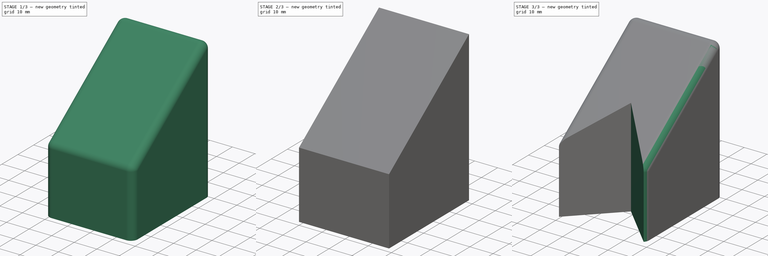
[diagram: build sequence overview — one tinted view per stage of 3, left to right]
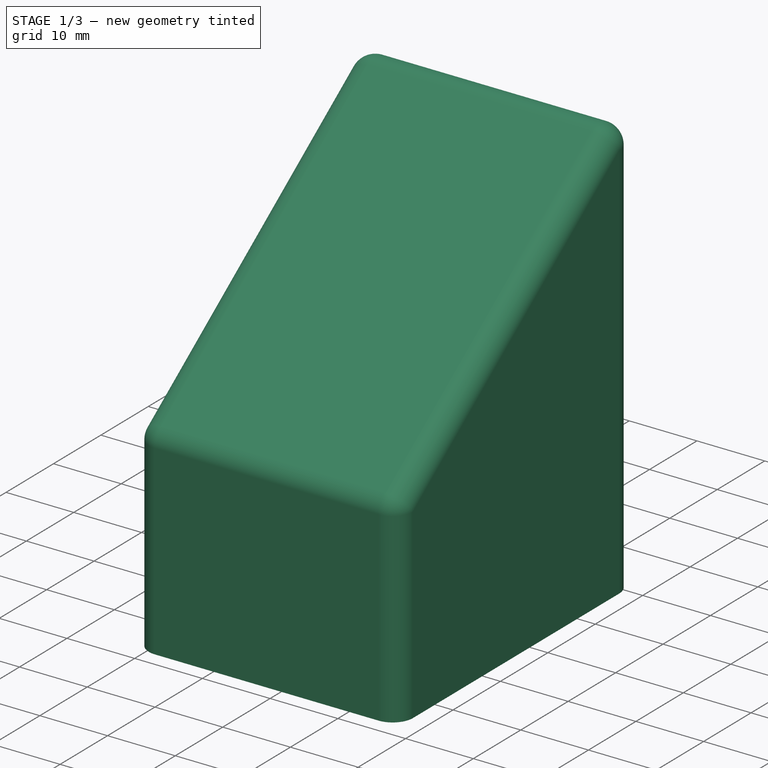
[diagram: stage 1 of 3 — iso view after this stage's code; geometry added in this stage tinted green]
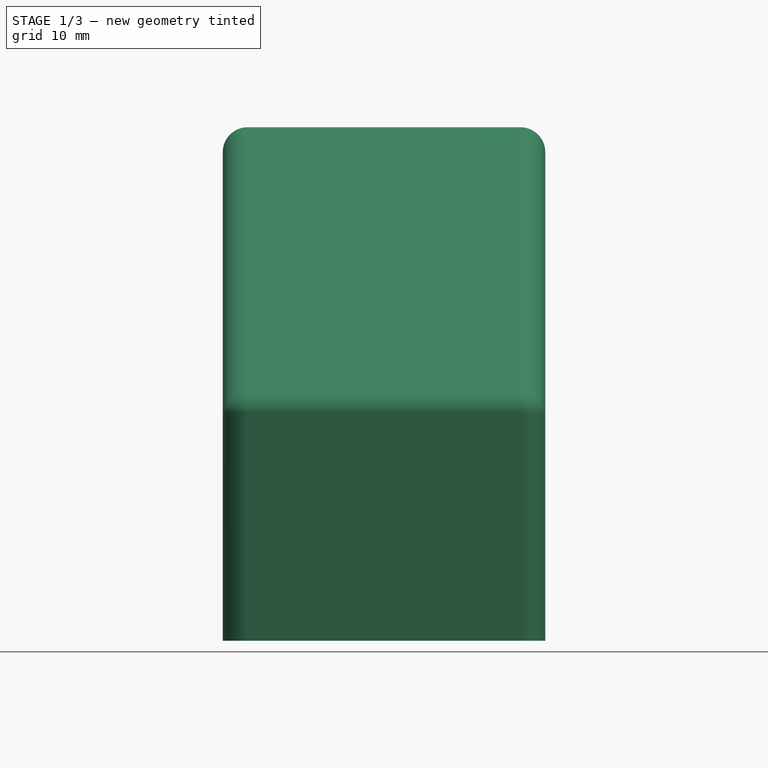
[diagram: stage 1 of 3 — front view after this stage's code; geometry added in this stage tinted green]
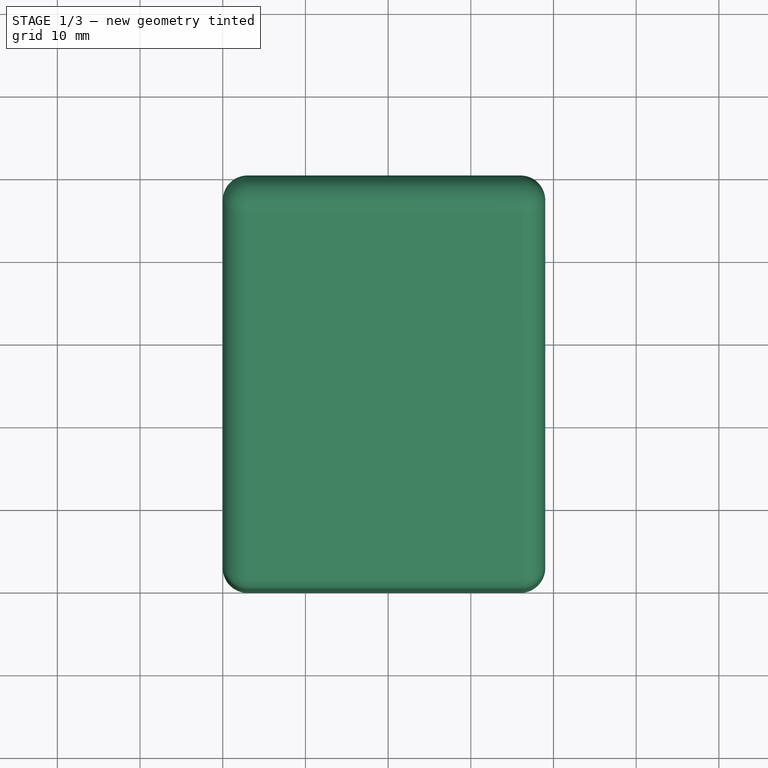
[diagram: stage 1 of 3 — top view after this stage's code; geometry added in this stage tinted green]
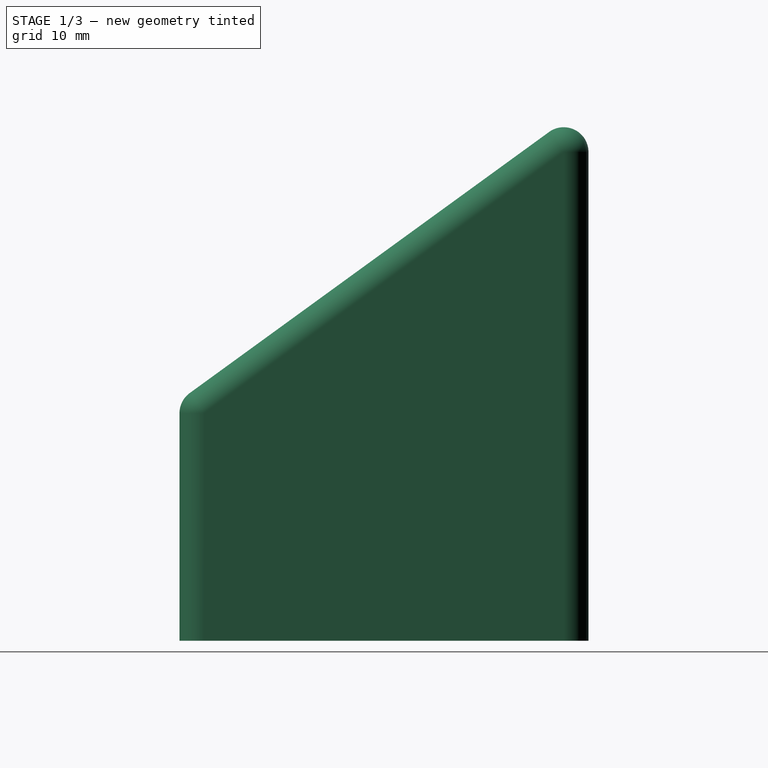
[diagram: stage 1 of 3 — right view after this stage's code; geometry added in this stage tinted green]
FCSTD DOCUMENT  (FreeCAD 1.0R39319 (Git))
Label: Ограничитель для окна
License: All rights reserved
LicenseURL: https://en.wikipedia.org/wiki/All_rights_reserved
objects: Sketcher::SketchObject×4, PartDesign::Pad×2, PartDesign::Fillet×2, PartDesign::Pocket×2, PartDesign::Body×2
note: 28 computed .brp shape members not serialized (recipe doc carries the construction recipe); baked Part::Feature solids carry a one-line shape summary decoded from their .brp

FEATURE [PartDesign::Body] Body002  label="Ограничитель (правый)"
  AllowCompound = false
  Group = -> [Sketch003,Pad002,Fillet,Sketch004,Pocket001]
  Origin = -> Origin004
  Placement = pos=(-50,0,0) rot=(0,0,1;0rad)
  Tip = -> Pocket001
FEATURE [Sketcher::SketchObject] Sketch005
  ArcFitTolerance = 1e-06
  FullyConstrained = true
  MakeInternals = false
  MapMode = 5
  Placement = pos=(0,0,0) rot=(0.57735,0.57735,0.57735;2.0944rad)
  sketch-geometry (7):
    g0: LineSegment [constr] StartX=0 StartY=0 StartZ=0 EndX=89.4648 EndY=65 EndZ=0
    g1: LineSegment [constr] StartX=89.4648 StartY=65 StartZ=0 EndX=89.4648 EndY=0 EndZ=0
    g2: LineSegment [constr] StartX=89.4648 StartY=0 StartZ=0 EndX=0 EndY=0 EndZ=0
    g3: LineSegment StartX=40 StartY=0 StartZ=0 EndX=40 EndY=29.0617 EndZ=0
    g4: LineSegment StartX=40 StartY=29.0617 StartZ=0 EndX=89.4648 EndY=65 EndZ=0
    g5: LineSegment StartX=89.4648 StartY=65 StartZ=0 EndX=89.4648 EndY=0 EndZ=0
    g6: LineSegment StartX=89.4648 StartY=0 StartZ=0 EndX=40 EndY=0 EndZ=0
  constraints (18):
    c: Coincident(g0,g1)
    c: Coincident(g1,g2)
    c: Coincident(g2,g0)
    c: Angle(g0,g1) = 0.942478
    c: Horizontal(g2)
    c: PointOnObject(g3,g2)
    c: PointOnObject(g3,g0)
    c: Vertical(g3)
    c: Coincident(g3,g4)
    c: Coincident(g4,g0)
    c: Coincident(g4,g5)
    c: Coincident(g5,g1)
    c: Coincident(g5,g6)
    c: Coincident(g6,g3)
    c: Vertical(g5)
    c: DistanceY(g5,g5) = 65
    c: DistanceX(g0,g3) = 40
    c: Coincident(g0,g-1)
FEATURE [PartDesign::Pad] Pad003
  Direction = (1,1e-16,-1e-16)
  Length = 39
  Length2 = 10
  Placement = pos=(0,0,0) rot=(0.57735,0.57735,0.57735;2.0944rad)
  Profile = -> Sketch005
  ReferenceAxis = -> Sketch005 [N_Axis]
  Refine = true
  Suppressed = false
  Type = 0
FEATURE [PartDesign::Fillet] Fillet001
  Base = -> Pad003 [Edge2,Edge6,Edge3,Edge4,Edge7,Edge5,Edge9,Edge10]
  BaseFeature = -> Pad003
  Placement = pos=(0,0,0) rot=(0.57735,0.57735,0.57735;2.0944rad)
  Radius = 3
  Refine = true
  SupportTransform = false
  Suppressed = false
  UseAllEdges = false
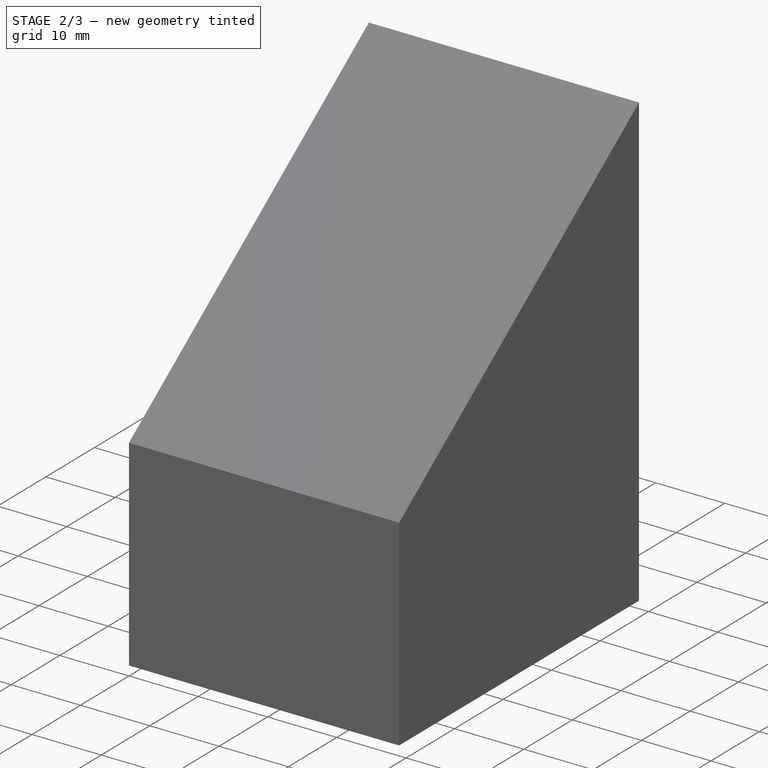
[diagram: stage 2 of 3 — iso view after this stage's code; geometry added in this stage tinted green]
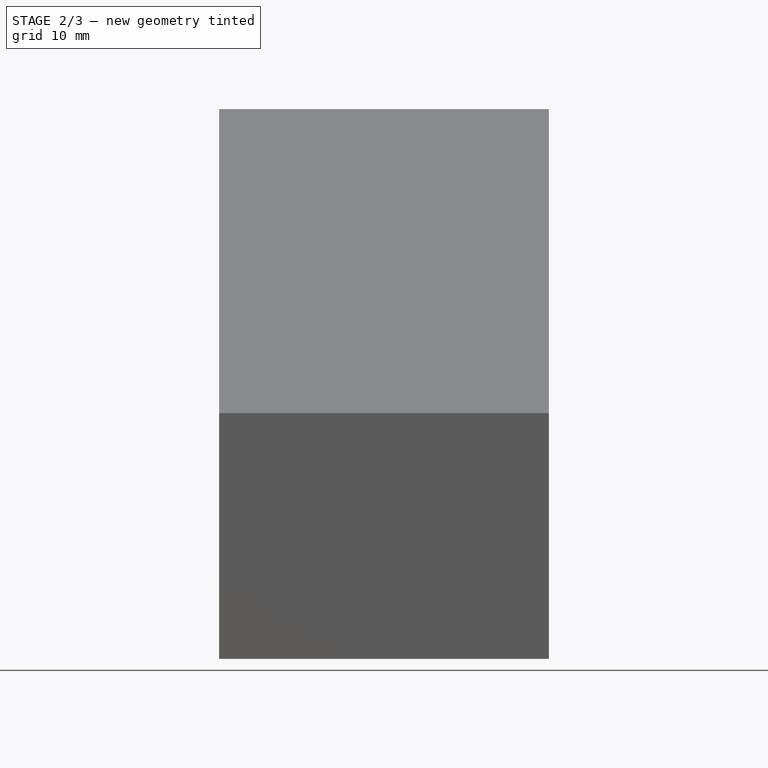
[diagram: stage 2 of 3 — front view after this stage's code; geometry added in this stage tinted green]
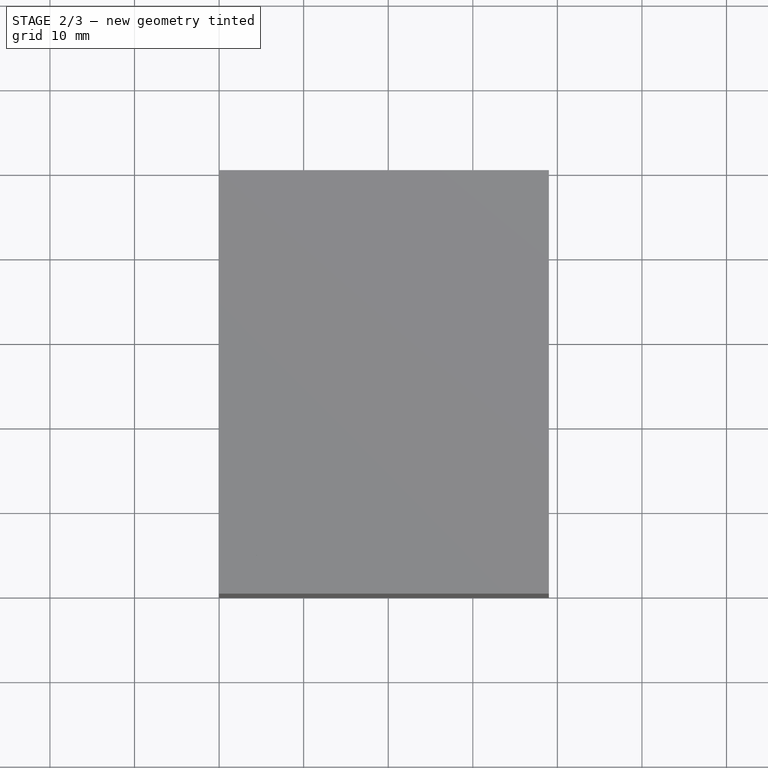
[diagram: stage 2 of 3 — top view after this stage's code; geometry added in this stage tinted green]
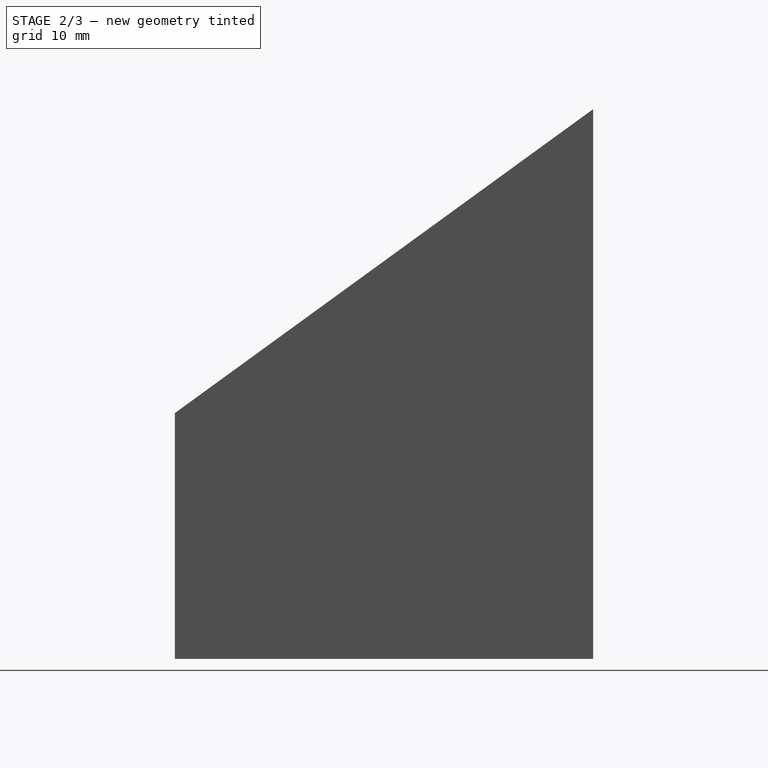
[diagram: stage 2 of 3 — right view after this stage's code; geometry added in this stage tinted green]
FEATURE [Sketcher::SketchObject] Sketch003
  ArcFitTolerance = 1e-06
  AttachmentSupport = -> [Origin004]
  FullyConstrained = true
  MakeInternals = false
  MapMode = 5
  Placement = pos=(0,0,0) rot=(0.57735,0.57735,0.57735;2.0944rad)
  sketch-geometry (7):
    g0: LineSegment [constr] StartX=0 StartY=0 StartZ=0 EndX=89.4648 EndY=65 EndZ=0
    g1: LineSegment [constr] StartX=89.4648 StartY=65 StartZ=0 EndX=89.4648 EndY=0 EndZ=0
    g2: LineSegment [constr] StartX=89.4648 StartY=0 StartZ=0 EndX=0 EndY=0 EndZ=0
    g3: LineSegment StartX=40 StartY=0 StartZ=0 EndX=40 EndY=29.0617 EndZ=0
    g4: LineSegment StartX=40 StartY=29.0617 StartZ=0 EndX=89.4648 EndY=65 EndZ=0
    g5: LineSegment StartX=89.4648 StartY=65 StartZ=0 EndX=89.4648 EndY=0 EndZ=0
    g6: LineSegment StartX=89.4648 StartY=0 StartZ=0 EndX=40 EndY=0 EndZ=0
  constraints (18):
    c: Coincident(g0,g1)
    c: Coincident(g1,g2)
    c: Coincident(g2,g0)
    c: Angle(g0,g1) = 0.942478
    c: Horizontal(g2)
    c: PointOnObject(g3,g2)
    c: PointOnObject(g3,g0)
    c: Vertical(g3)
    c: Coincident(g3,g4)
    c: Coincident(g4,g0)
    c: Coincident(g4,g5)
    c: Coincident(g5,g1)
    c: Coincident(g5,g6)
    c: Coincident(g6,g3)
    c: Vertical(g5)
    c: DistanceY(g5,g5) = 65
    c: DistanceX(g0,g3) = 40
    c: Coincident(g0,g-1)
FEATURE [PartDesign::Pad] Pad002
  Direction = (1,0,0)
  Length = 39
  Length2 = 10
  Profile = -> Sketch003
  ReferenceAxis = -> Sketch003 [N_Axis]
  Refine = true
  Suppressed = false
  Type = 0
FEATURE [Sketcher::SketchObject] Sketch006
  ArcFitTolerance = 1e-06
  AttachmentSupport = -> [Fillet001]
  ExternalGeometry = -> [Fillet001]
  FullyConstrained = true
  MakeInternals = false
  MapMode = 5
  Placement = pos=(0,0,0) rot=(0.707107,0.707107,0;3.14159rad)
  sketch-geometry (3):
    g0: LineSegment StartX=40 StartY=39 StartZ=0 EndX=40 EndY=0 EndZ=0
    g1: LineSegment StartX=40 StartY=0 StartZ=0 EndX=79 EndY=39 EndZ=0
    g2: LineSegment StartX=79 StartY=39 StartZ=0 EndX=40 EndY=39 EndZ=0
  constraints (9):
    c: Vertical(g0)
    c: Coincident(g0,g1)
    c: Coincident(g1,g2)
    c: Horizontal(g2)
    c: Angle(g2,g1) = 0.785398
    c: Coincident(g0,g2)
    c: Vertical(g-3,g0)
    c: Horizontal(g-4,g0)
    c: PointOnObject(g0,g-1)
FEATURE [PartDesign::Pocket] Pocket002
  BaseFeature = -> Fillet001
  Direction = (0,0,1)
  Length = 5
  Length2 = 5
  Placement = pos=(0,0,0) rot=(0.57735,0.57735,0.57735;2.0944rad)
  Profile = -> Sketch006
  ReferenceAxis = -> Sketch006 [N_Axis]
  Refine = true
  Suppressed = false
  Type = 1
FEATURE [PartDesign::Body] Body003  label="Ограничитель (левый)"
  AllowCompound = false
  Group = -> [Sketch005,Pad003,Fillet001,Sketch006,Pocket002]
  Origin = -> Origin005
  Placement = pos=(1,0,0) rot=(0,0,1;0rad)
  Tip = -> Pocket002
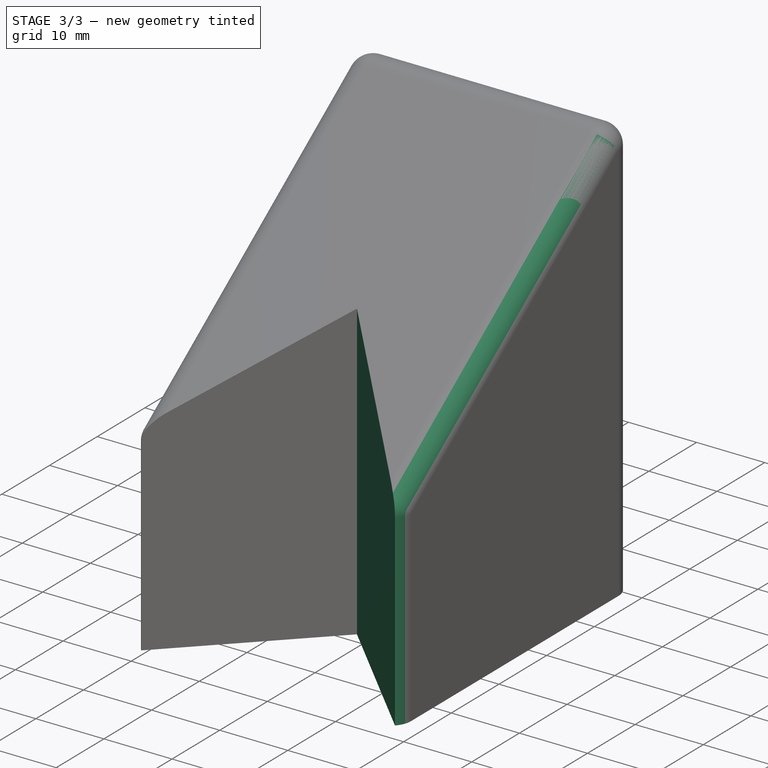
[diagram: stage 3 of 3 — iso view after this stage's code; geometry added in this stage tinted green]
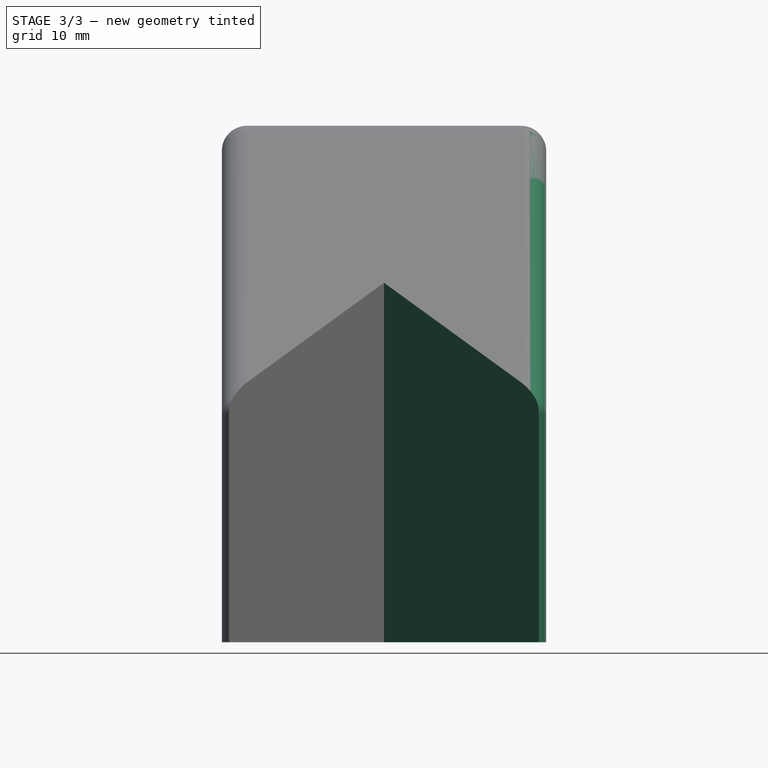
[diagram: stage 3 of 3 — front view after this stage's code; geometry added in this stage tinted green]
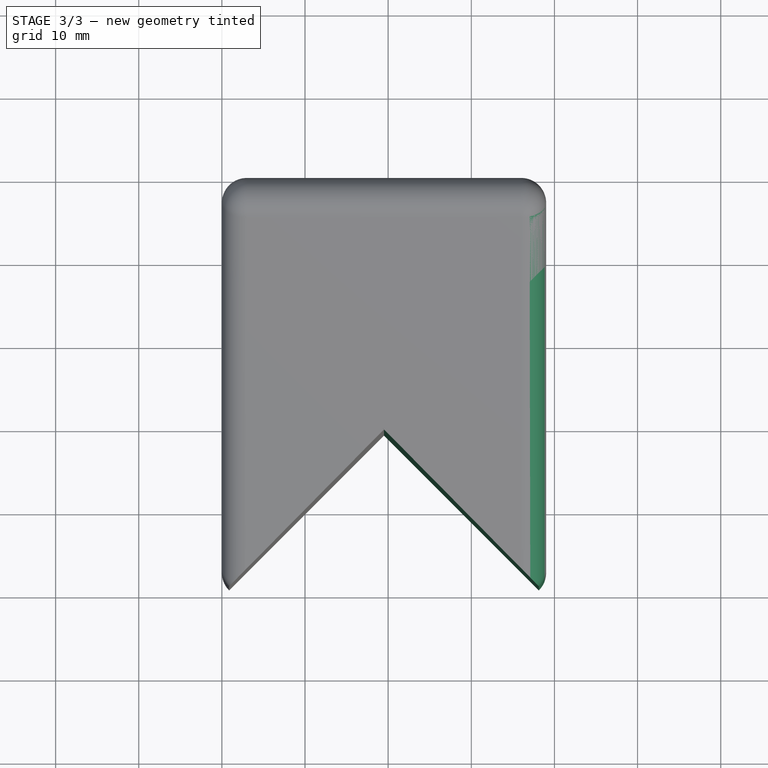
[diagram: stage 3 of 3 — top view after this stage's code; geometry added in this stage tinted green]
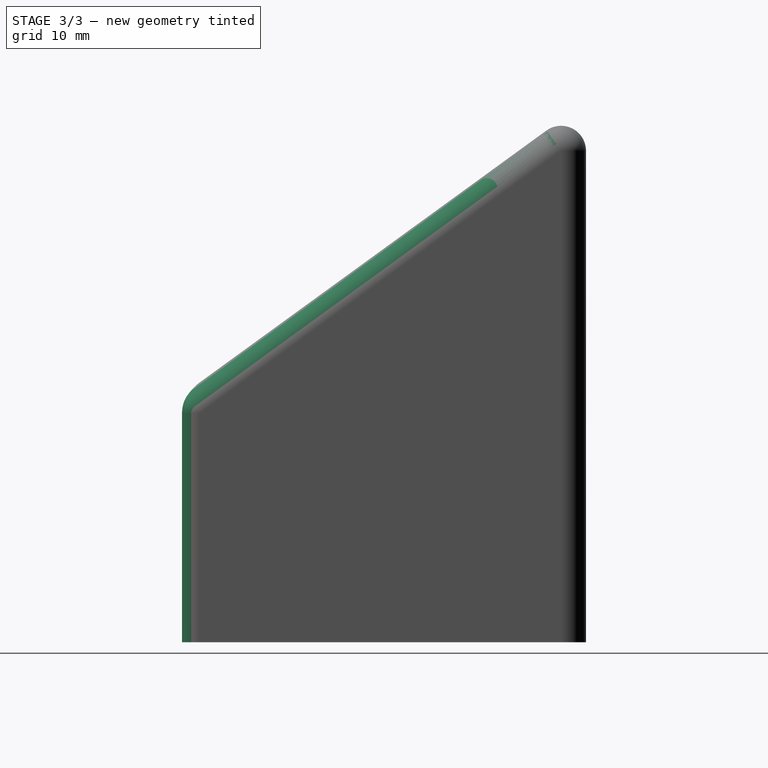
[diagram: stage 3 of 3 — right view after this stage's code; geometry added in this stage tinted green]
FEATURE [PartDesign::Fillet] Fillet
  Base = -> Pad002 [Edge2,Edge6,Edge3,Edge4,Edge7,Edge5,Edge9,Edge10]
  BaseFeature = -> Pad002
  Radius = 3
  Refine = true
  SupportTransform = false
  Suppressed = false
  UseAllEdges = false
FEATURE [Sketcher::SketchObject] Sketch004
  ArcFitTolerance = 1e-06
  AttachmentSupport = -> [Fillet]
  ExternalGeometry = -> [Fillet]
  FullyConstrained = true
  MakeInternals = false
  MapMode = 5
  Placement = pos=(0,0,0) rot=(1,0,0;3.14159rad)
  sketch-geometry (4):
    g0: GeomPoint [constr] X=39 Y=-40 Z=0
    g1: LineSegment StartX=39 StartY=-40 StartZ=0 EndX=0 EndY=-79 EndZ=0
    g2: LineSegment StartX=0 StartY=-79 StartZ=0 EndX=0 EndY=-40 EndZ=0
    g3: LineSegment StartX=0 StartY=-40 StartZ=0 EndX=39 EndY=-40 EndZ=0
  constraints (10):
    c: Horizontal(g0,g-3)
    c: Vertical(g-4,g0)
    c: Coincident(g1,g0)
    c: Coincident(g1,g2)
    c: PointOnObject(g2,g-2)
    c: Coincident(g2,g3)
    c: Coincident(g3,g1)
    c: Horizontal(g3)
    c: Angle(g1,g2) = 0.785398
    c: Vertical(g2)
FEATURE [PartDesign::Pocket] Pocket001
  BaseFeature = -> Fillet
  Direction = (0,0,1)
  Length = 5
  Length2 = 5
  Profile = -> Sketch004
  ReferenceAxis = -> Sketch004 [N_Axis]
  Refine = true
  Suppressed = false
  Type = 1
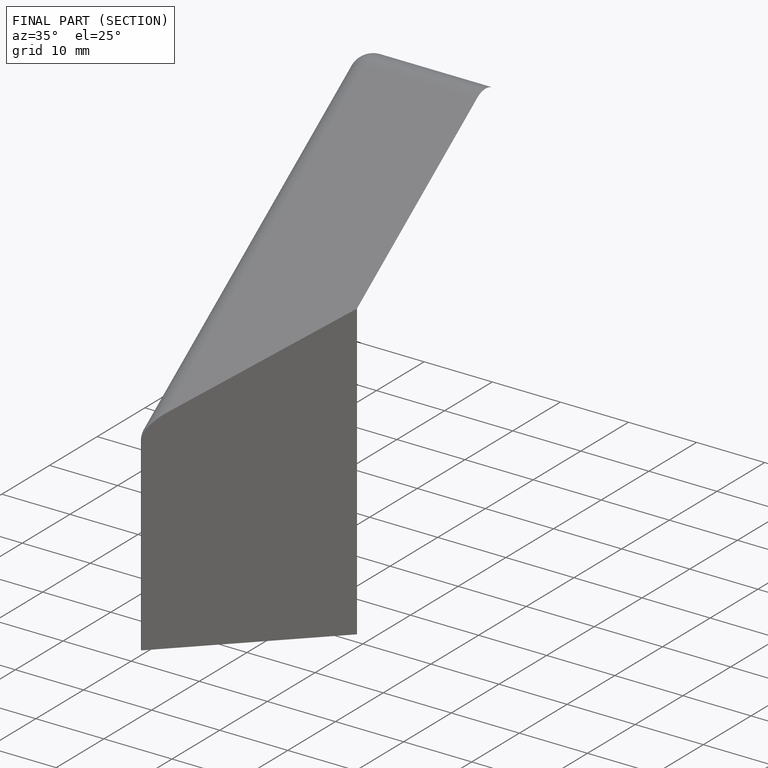
[diagram: finished part — half-section view (interior)]
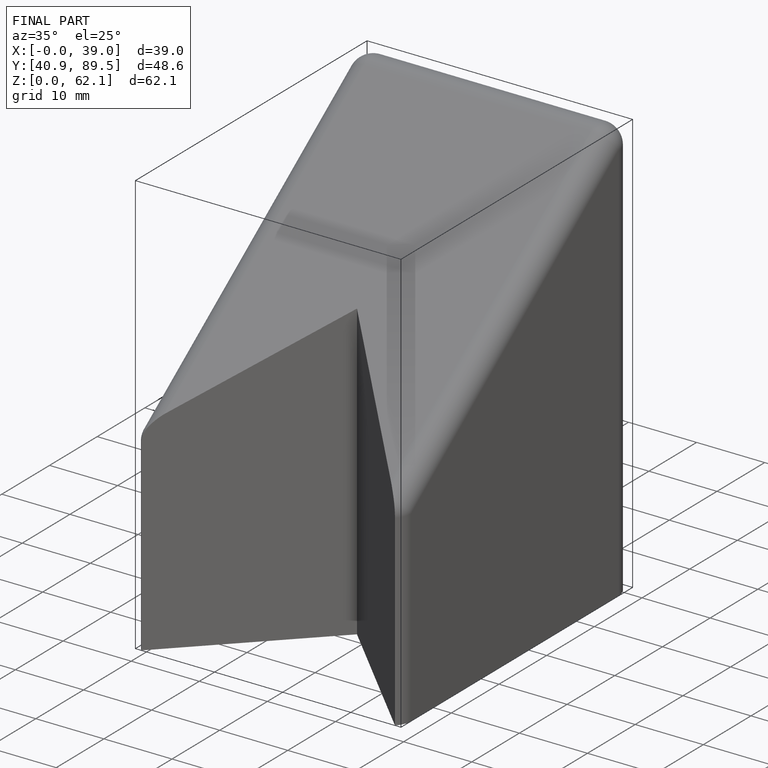
[diagram: finished part — iso view with bounding-box wireframe]
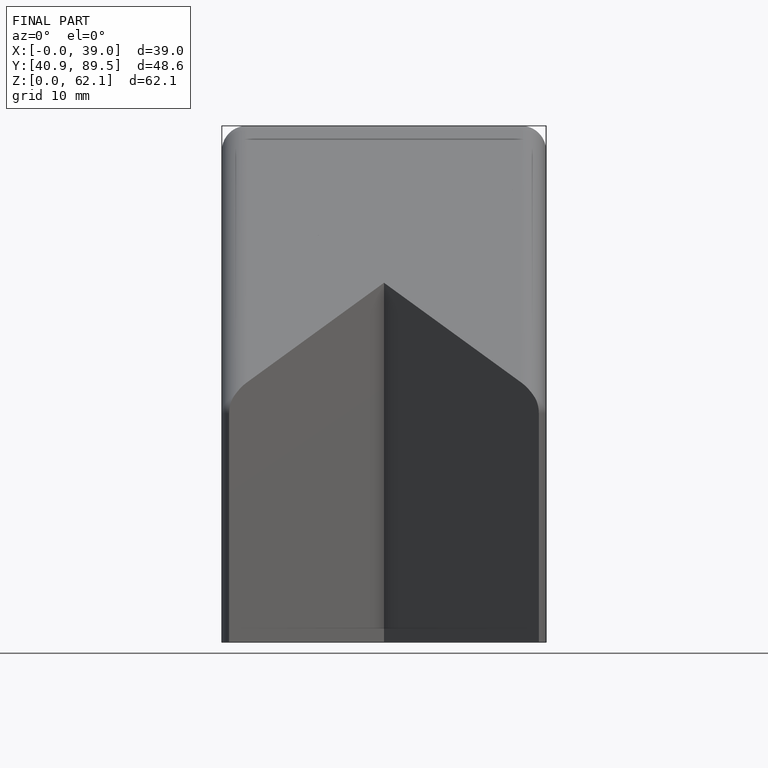
[diagram: finished part — front view with bounding-box wireframe]
